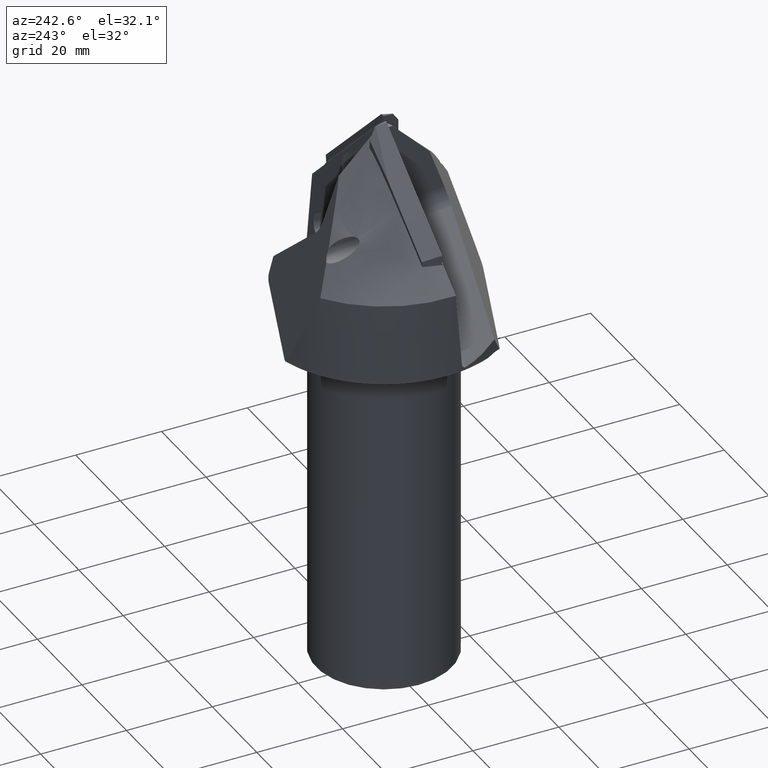
[diagram: clean part render]
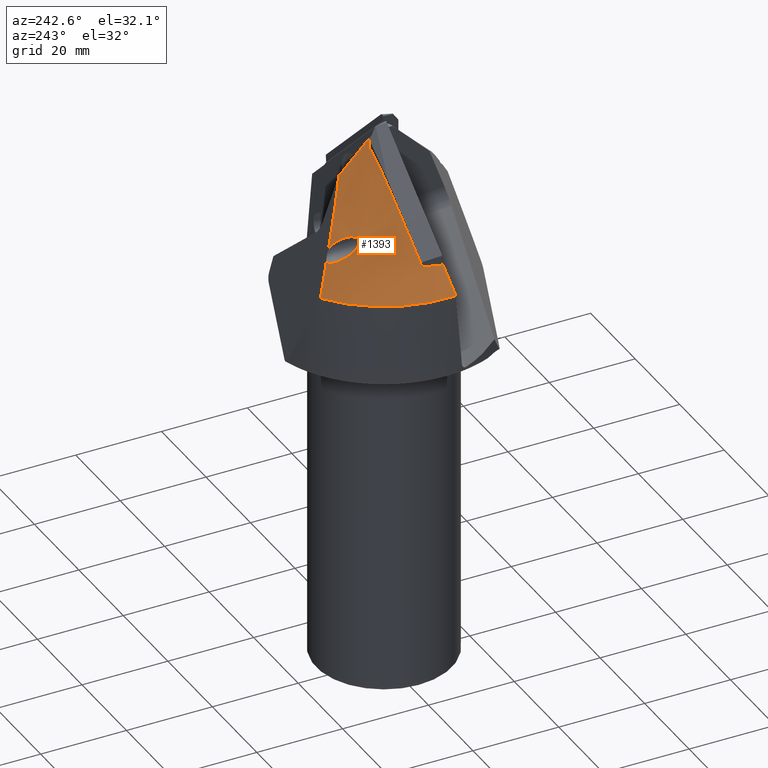
[diagram: same view with one face highlighted and labeled with its STEP entity id]
A machine part, auxiliary view. The second image highlights one B-rep face of the part: STEP entity #1393.
In plain terms, the highlighted conical surface has half-angle 45 deg.
Its self-contained STEP definition (entity closure, byte-faithful):
#20=(
BOUNDED_CURVE()
B_SPLINE_CURVE(2,(#2326,#2327,#2328),.UNSPECIFIED.,.F.,.F.)
B_SPLINE_CURVE_WITH_KNOTS((3,3),(0.,0.216740704497589),.UNSPECIFIED.)
CURVE()
GEOMETRIC_REPRESENTATION_ITEM()
RATIONAL_B_SPLINE_CURVE((1.,1.05893343567275,1.11092007717051))
REPRESENTATION_ITEM('')
);
#21=(
BOUNDED_CURVE()
B_SPLINE_CURVE(2,(#2354,#2355,#2356),.UNSPECIFIED.,.F.,.F.)
B_SPLINE_CURVE_WITH_KNOTS((3,3),(1.29640021601137,2.12736517776967),
 .UNSPECIFIED.)
CURVE()
GEOMETRIC_REPRESENTATION_ITEM()
RATIONAL_B_SPLINE_CURVE((1.31997539518197,1.26253640852805,1.))
REPRESENTATION_ITEM('')
);
#25=(
BOUNDED_CURVE()
B_SPLINE_CURVE(2,(#2540,#2541,#2542),.UNSPECIFIED.,.F.,.F.)
B_SPLINE_CURVE_WITH_KNOTS((3,3),(5.82367393139401,6.05793203196296),
 .UNSPECIFIED.)
CURVE()
GEOMETRIC_REPRESENTATION_ITEM()
RATIONAL_B_SPLINE_CURVE((1.1943038254258,1.1010598620258,1.))
REPRESENTATION_ITEM('')
);
#26=(
BOUNDED_CURVE()
B_SPLINE_CURVE(2,(#2545,#2546,#2547),.UNSPECIFIED.,.F.,.F.)
B_SPLINE_CURVE_WITH_KNOTS((3,3),(1.20675636598671,1.74093739501884),
 .UNSPECIFIED.)
CURVE()
GEOMETRIC_REPRESENTATION_ITEM()
RATIONAL_B_SPLINE_CURVE((1.10669695631484,1.11782694122587,1.11790358679597))
REPRESENTATION_ITEM('')
);
#27=(
BOUNDED_CURVE()
B_SPLINE_CURVE(2,(#2548,#2549,#2550),.UNSPECIFIED.,.F.,.F.)
B_SPLINE_CURVE_WITH_KNOTS((3,3),(0.144993954449259,2.97008054855573),
 .UNSPECIFIED.)
CURVE()
GEOMETRIC_REPRESENTATION_ITEM()
RATIONAL_B_SPLINE_CURVE((1.1941796378267,3.0477340885236,3.41426033316159))
REPRESENTATION_ITEM('')
);
#28=(
BOUNDED_CURVE()
B_SPLINE_CURVE(2,(#2555,#2556,#2557),.UNSPECIFIED.,.F.,.F.)
B_SPLINE_CURVE_WITH_KNOTS((3,3),(4.09998156567885,5.6963822214494),
 .UNSPECIFIED.)
CURVE()
GEOMETRIC_REPRESENTATION_ITEM()
RATIONAL_B_SPLINE_CURVE((2.14333444402985,1.89981852532499,1.29333031138048))
REPRESENTATION_ITEM('')
);
#43=B_SPLINE_CURVE_WITH_KNOTS('',3,(#2497,#2498,#2499,#2500),
 .UNSPECIFIED.,.F.,.F.,(4,4),(1.17832811807301,1.19490871409306),
 .UNSPECIFIED.);
#44=B_SPLINE_CURVE_WITH_KNOTS('',3,(#2503,#2504,#2505,#2506,#2507,#2508,
#2509,#2510,#2511,#2512,#2513,#2514,#2515,#2516,#2517,#2518,#2519,#2520,
#2521,#2522,#2523,#2524,#2525,#2526,#2527,#2528,#2529,#2530,#2531,#2532,
#2533,#2534,#2535,#2536,#2537),.UNSPECIFIED.,.F.,.F.,(4,2,2,2,2,2,2,2,2,
3,2,2,2,2,2,2,4),(1.19490871409306,1.24748336539774,1.44980237046646,1.64428720122635,
1.7415296166063,1.83877203198625,1.87170614744164,1.90464026289703,1.93546690445302,
1.96629354600901,2.03776951024816,2.10924547448732,2.25219740296562,2.58758992767457,
2.70670074023246,2.76625614651141,2.80678888422525),.UNSPECIFIED.);
#68=CONICAL_SURFACE('',#1564,15.,0.785398163397449);
#144=CIRCLE('',#1565,28.);
#145=CIRCLE('',#1566,2.);
#209=FACE_OUTER_BOUND('',#289,.T.);
#289=EDGE_LOOP('',(#1175,#1176,#1177,#1178,#1179,#1180,#1181,#1182,#1183,
#1184,#1185));
#426=LINE('',#2554,#518);
#518=VECTOR('',#1954,10.);
#610=VERTEX_POINT('',#2323);
#611=VERTEX_POINT('',#2325);
#618=VERTEX_POINT('',#2351);
#619=VERTEX_POINT('',#2353);
#654=VERTEX_POINT('',#2494);
#655=VERTEX_POINT('',#2496);
#656=VERTEX_POINT('',#2501);
#657=VERTEX_POINT('',#2539);
#658=VERTEX_POINT('',#2544);
#659=VERTEX_POINT('',#2551);
#660=VERTEX_POINT('',#2553);
#776=EDGE_CURVE('',#611,#610,#20,.T.);
#789=EDGE_CURVE('',#619,#618,#21,.T.);
#842=EDGE_CURVE('',#655,#654,#43,.T.);
#844=EDGE_CURVE('',#654,#656,#44,.T.);
#845=EDGE_CURVE('',#656,#657,#25,.T.);
#846=EDGE_CURVE('',#611,#657,#144,.T.);
#847=EDGE_CURVE('',#610,#658,#26,.T.);
#848=EDGE_CURVE('',#658,#619,#27,.T.);
#849=EDGE_CURVE('',#618,#659,#145,.T.);
#850=EDGE_CURVE('',#659,#660,#426,.T.);
#851=EDGE_CURVE('',#660,#655,#28,.T.);
#1175=ORIENTED_EDGE('',*,*,#842,.T.);
#1176=ORIENTED_EDGE('',*,*,#844,.T.);
#1177=ORIENTED_EDGE('',*,*,#845,.T.);
#1178=ORIENTED_EDGE('',*,*,#846,.F.);
#1179=ORIENTED_EDGE('',*,*,#776,.T.);
#1180=ORIENTED_EDGE('',*,*,#847,.T.);
#1181=ORIENTED_EDGE('',*,*,#848,.T.);
#1182=ORIENTED_EDGE('',*,*,#789,.T.);
#1183=ORIENTED_EDGE('',*,*,#849,.T.);
#1184=ORIENTED_EDGE('',*,*,#850,.T.);
#1185=ORIENTED_EDGE('',*,*,#851,.T.);
#1393=ADVANCED_FACE('',(#209),#68,.T.);
#1564=AXIS2_PLACEMENT_3D('',#2538,#1948,#1949);
#1565=AXIS2_PLACEMENT_3D('',#2543,#1950,#1951);
#1566=AXIS2_PLACEMENT_3D('',#2552,#1952,#1953);
#1948=DIRECTION('center_axis',(0.,0.,-1.));
#1949=DIRECTION('ref_axis',(-1.,0.,0.));
#1950=DIRECTION('center_axis',(0.,0.,-1.));
#1951=DIRECTION('ref_axis',(1.,0.,0.));
#1952=DIRECTION('center_axis',(0.,0.,-1.));
#1953=DIRECTION('ref_axis',(1.,0.,0.));
#1954=DIRECTION('',(4.46342222180471E-15,0.707106781186548,-0.707106781186547));
#2323=CARTESIAN_POINT('',(-23.0000000018798,-1.84371678733241,-21.0737793106886));
#2325=CARTESIAN_POINT('',(-27.9074491134179,-2.27470525167402,-26.));
#2326=CARTESIAN_POINT('Ctrl Pts',(-27.9074491134179,-2.27470525167402,-26.));
#2327=CARTESIAN_POINT('Ctrl Pts',(-25.2171982767104,-2.03843749821013,-23.2994472204518));
#2328=CARTESIAN_POINT('Ctrl Pts',(-23.0000000018798,-1.84371678733241,-21.0737793106886));
#2351=CARTESIAN_POINT('',(-1.19606755643902,1.60294179571,0.));
#2353=CARTESIAN_POINT('',(-1.55253052406307,4.29278888815602,-2.56490826484205));
#2354=CARTESIAN_POINT('Ctrl Pts',(-1.55253052406307,4.29278888815602,-2.56490826484205));
#2355=CARTESIAN_POINT('Ctrl Pts',(-1.30381313309604,2.42082410171631,-0.719944360429246));
#2356=CARTESIAN_POINT('Ctrl Pts',(-1.19606755643902,1.60294179571,2.22044604925031E-15));
#2494=CARTESIAN_POINT('',(-9.9,17.9204133381648,-18.4731828060679));
#2496=CARTESIAN_POINT('',(-9.90254183717355,18.0503515629096,-18.5882375734691));
#2497=CARTESIAN_POINT('Ctrl Pts',(-9.90254183717355,18.0503515629096,-18.5882375734691));
#2498=CARTESIAN_POINT('Ctrl Pts',(-9.90083803066286,18.0073859350977,-18.5497487664718));
#2499=CARTESIAN_POINT('Ctrl Pts',(-9.9,17.964060848081,-18.5113879755469));
#2500=CARTESIAN_POINT('Ctrl Pts',(-9.9,17.9204133381648,-18.4731828060679));
#2501=CARTESIAN_POINT('',(-11.622906697301,19.4792464229461,-20.6833198914979));
#2503=CARTESIAN_POINT('Ctrl Pts',(-9.9,17.9204133381648,-18.4731828060679));
#2504=CARTESIAN_POINT('Ctrl Pts',(-9.9,17.7820134512498,-18.3520397867843));
#2505=CARTESIAN_POINT('Ctrl Pts',(-9.90842082352633,17.6403739689025,-18.2324589823702));
#2506=CARTESIAN_POINT('Ctrl Pts',(-9.98614573723751,16.943554772199,-17.6647024716212));
#2507=CARTESIAN_POINT('Ctrl Pts',(-10.1627863492584,16.3594231356862,-17.2527766924256));
#2508=CARTESIAN_POINT('Ctrl Pts',(-10.6214552568693,15.2951074829753,-16.6153318247354));
#2509=CARTESIAN_POINT('Ctrl Pts',(-10.9346416051648,14.729395321849,-16.3339853670389));
#2510=CARTESIAN_POINT('Ctrl Pts',(-11.4985904495819,13.9405613282809,-16.0682088984025));
#2511=CARTESIAN_POINT('Ctrl Pts',(-11.7002154923213,13.6890793223146,-16.0051739772611));
#2512=CARTESIAN_POINT('Ctrl Pts',(-12.1347254511109,13.2274539926548,-15.9476308573098));
#2513=CARTESIAN_POINT('Ctrl Pts',(-12.3639794588203,13.0144876274299,-15.9485359984616));
#2514=CARTESIAN_POINT('Ctrl Pts',(-12.7249054045769,12.793267153389,-16.0438358701738));
#2515=CARTESIAN_POINT('Ctrl Pts',(-12.8272963386014,12.7406523785614,-16.0791124333742));
#2516=CARTESIAN_POINT('Ctrl Pts',(-13.0309834700142,12.6682529222931,-16.1736544023922));
#2517=CARTESIAN_POINT('Ctrl Pts',(-13.1323189640464,12.6490189550934,-16.2332557729203));
#2518=CARTESIAN_POINT('Ctrl Pts',(-13.3050288148997,12.6476575693877,-16.3571143391657));
#2519=CARTESIAN_POINT('Ctrl Pts',(-13.3891907972054,12.6631419822824,-16.4289113088255));
#2520=CARTESIAN_POINT('Ctrl Pts',(-13.5385830398658,12.7251353037098,-16.5801366034199));
#2521=CARTESIAN_POINT('Ctrl Pts',(-13.6041071733937,12.7712006213475,-16.6594559753463));
#2522=CARTESIAN_POINT('Ctrl Pts',(-13.6570809611467,12.8209311080633,-16.7321150662979));
#2523=CARTESIAN_POINT('Ctrl Pts',(-13.779908241964,12.9362383329402,-16.900585529649));
#2524=CARTESIAN_POINT('Ctrl Pts',(-13.8628037574394,13.0867825542094,-17.0639758810154));
#2525=CARTESIAN_POINT('Ctrl Pts',(-13.9899021897344,13.422144150029,-17.3872454726737));
#2526=CARTESIAN_POINT('Ctrl Pts',(-14.0324124750981,13.6080297554406,-17.5466787568523));
#2527=CARTESIAN_POINT('Ctrl Pts',(-14.1149831151518,14.1941305761641,-18.016202216218));
#2528=CARTESIAN_POINT('Ctrl Pts',(-14.1085148216903,14.6207674787127,-18.3156948575326));
#2529=CARTESIAN_POINT('Ctrl Pts',(-13.9775223969819,15.9457239829955,-19.193021783));
#2530=CARTESIAN_POINT('Ctrl Pts',(-13.6532191626436,17.0745767355637,-19.8413497904988));
#2531=CARTESIAN_POINT('Ctrl Pts',(-12.9420832232328,18.2889596589012,-20.4024366801186));
#2532=CARTESIAN_POINT('Ctrl Pts',(-12.7043448660113,18.624668440951,-20.5416286054294));
#2533=CARTESIAN_POINT('Ctrl Pts',(-12.2813278095679,19.0515635024476,-20.6661570607766));
#2534=CARTESIAN_POINT('Ctrl Pts',(-12.1298730620067,19.1809432449287,-20.6937101191557));
#2535=CARTESIAN_POINT('Ctrl Pts',(-11.8580048605525,19.3635439732006,-20.7055400163455));
#2536=CARTESIAN_POINT('Ctrl Pts',(-11.7432444999826,19.427887338921,-20.7008763515243));
#2537=CARTESIAN_POINT('Ctrl Pts',(-11.622906697301,19.4792464229461,-20.6833198914979));
#2538=CARTESIAN_POINT('Origin',(0.,0.,-13.));
#2539=CARTESIAN_POINT('',(-15.8782235030881,23.0625674716841,-26.));
#2540=CARTESIAN_POINT('Ctrl Pts',(-11.622906697301,19.4792464229461,-20.6833198914979));
#2541=CARTESIAN_POINT('Ctrl Pts',(-13.5080283510713,21.052811188729,-23.0005489911803));
#2542=CARTESIAN_POINT('Ctrl Pts',(-15.8782235030881,23.0625674716841,-26.));
#2543=CARTESIAN_POINT('Origin',(0.,0.,-26.));
#2544=CARTESIAN_POINT('',(-22.4474694759369,2.71396590421739,-20.6109375480623));
#2545=CARTESIAN_POINT('Ctrl Pts',(-23.0000000018798,-1.84371678733241,-21.0737793106886));
#2546=CARTESIAN_POINT('Ctrl Pts',(-22.7233477795537,0.458260642144081,-20.6140715460043));
#2547=CARTESIAN_POINT('Ctrl Pts',(-22.4474694759369,2.71396590421739,-20.6109375480623));
#2548=CARTESIAN_POINT('Ctrl Pts',(-22.4474694759369,2.71396590421739,-20.6109375480623));
#2549=CARTESIAN_POINT('Ctrl Pts',(-5.26736477341186,4.19065676837864,-3.73228373568936));
#2550=CARTESIAN_POINT('Ctrl Pts',(-1.55253052406307,4.29278888815602,-2.56490826484205));
#2551=CARTESIAN_POINT('',(1.0248172928882E-15,2.,0.));
#2552=CARTESIAN_POINT('Origin',(0.,0.,0.));
#2553=CARTESIAN_POINT('',(5.51054565781889E-14,10.5675934001327,-8.56759340013271));
#2554=CARTESIAN_POINT('',(8.30838364216459E-14,15.,-13.));
#2555=CARTESIAN_POINT('Ctrl Pts',(5.51054565781889E-14,10.5675934001327,
-8.56759340013271));
#2556=CARTESIAN_POINT('Ctrl Pts',(-3.20919928696397,12.5219296969064,-10.5219296969064));
#2557=CARTESIAN_POINT('Ctrl Pts',(-9.90254183717355,18.0503515629096,-18.5882375734691));